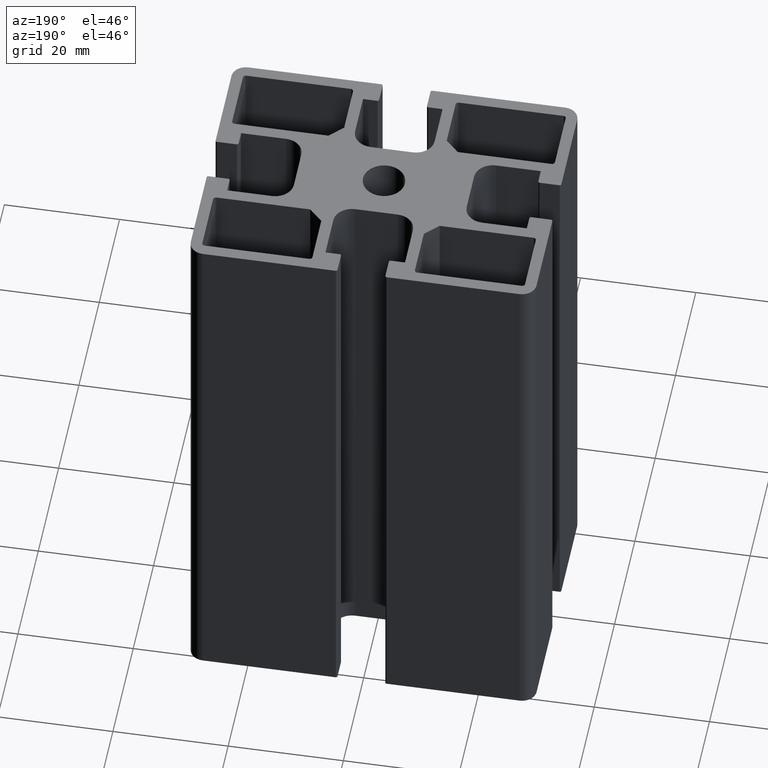
[diagram: clean part render]
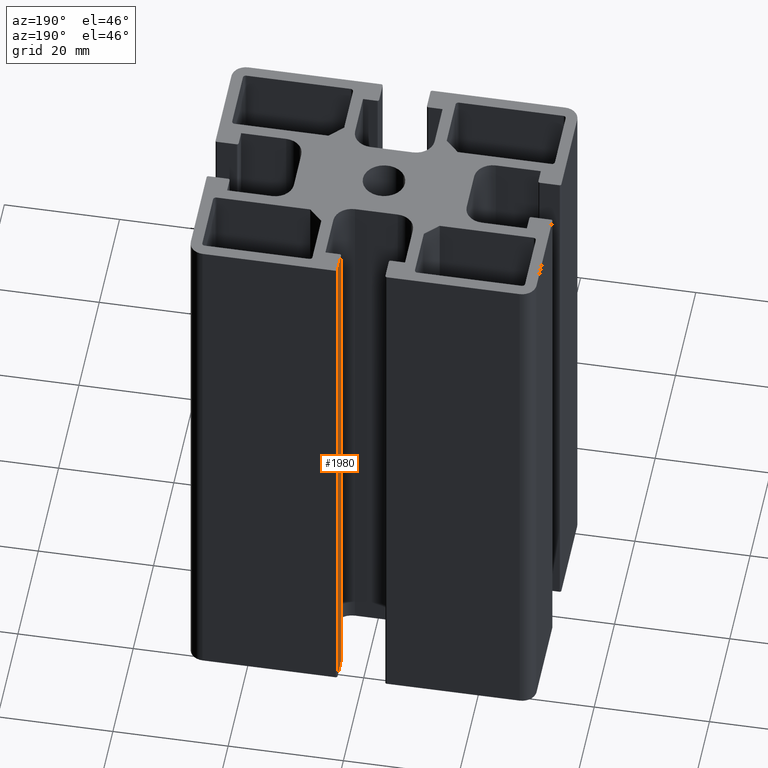
[diagram: same view with one face highlighted and labeled with its STEP entity id]
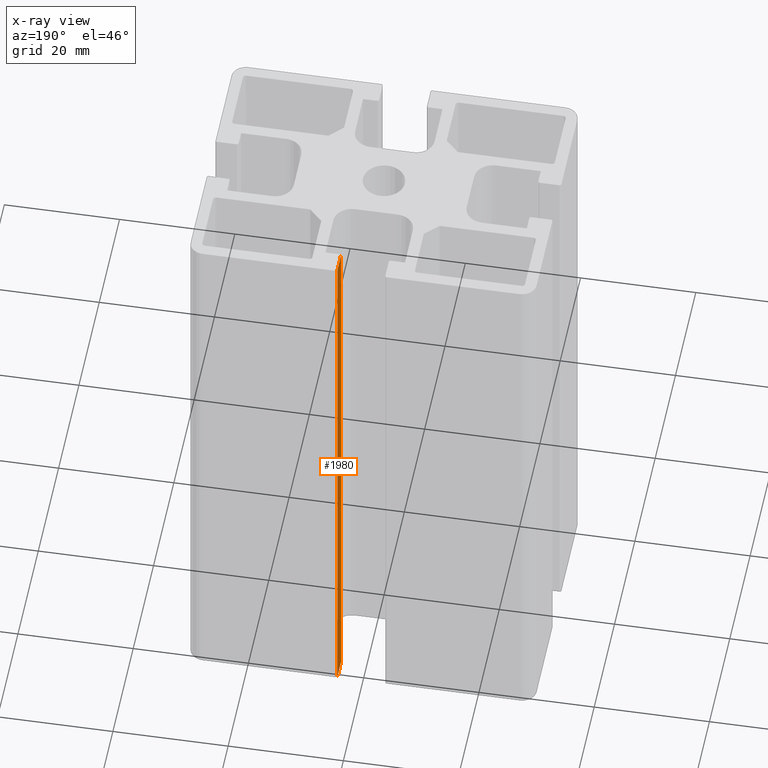
[diagram: x-ray of the same camera — body ghosted, the highlighted face saturated]
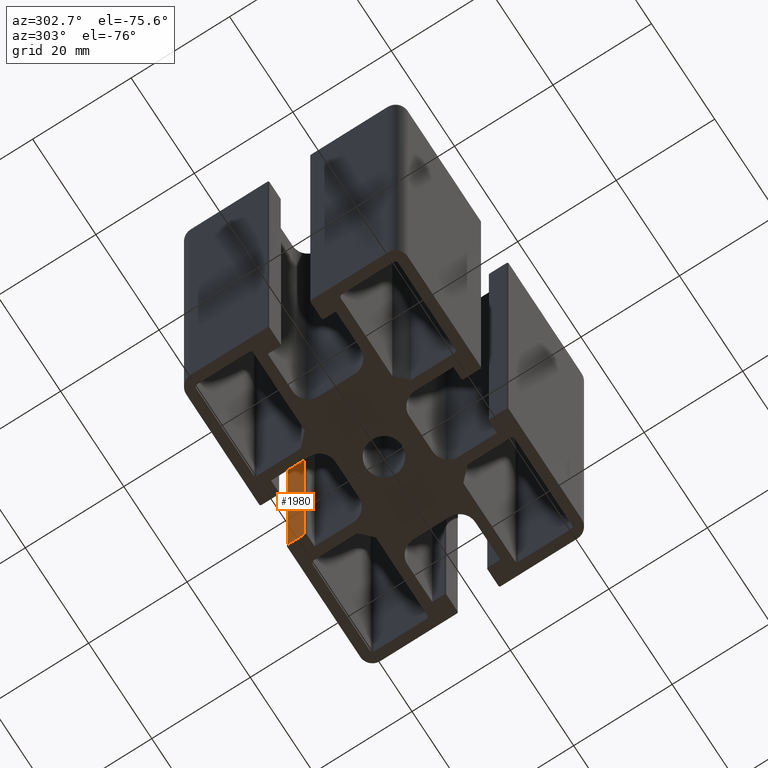
[diagram: same view with one face highlighted and labeled with its STEP entity id]
A machine part, auxiliary view. The second image highlights one B-rep face of the part: STEP entity #1980.
The next image is the same camera in x-ray: the body ghosted, the highlighted face saturated — about 0% of this face is hidden behind the body in this view.
A second angle (auxiliary view) of the same face is appended — the face is thin or edge-on in the first view.
In plain terms, the highlighted planar face has unit normal (-1, 0, 0).
Its self-contained STEP definition (entity closure, byte-faithful):
#233=FACE_OUTER_BOUND('',#338,.T.);
#338=EDGE_LOOP('',(#1685,#1686,#1687,#1688));
#459=LINE('',#3053,#667);
#544=LINE('',#3278,#752);
#545=LINE('',#3281,#753);
#546=LINE('',#3282,#754);
#667=VECTOR('',#2445,3.40000000000131);
#752=VECTOR('',#2686,100.);
#753=VECTOR('',#2689,3.40000000000131);
#754=VECTOR('',#2690,100.);
#891=VERTEX_POINT('',#3050);
#892=VERTEX_POINT('',#3052);
#954=VERTEX_POINT('',#3276);
#955=VERTEX_POINT('',#3280);
#1117=EDGE_CURVE('',#891,#892,#459,.T.);
#1230=EDGE_CURVE('',#954,#891,#544,.T.);
#1231=EDGE_CURVE('',#955,#954,#545,.T.);
#1232=EDGE_CURVE('',#955,#892,#546,.T.);
#1685=ORIENTED_EDGE('',*,*,#1230,.F.);
#1686=ORIENTED_EDGE('',*,*,#1231,.F.);
#1687=ORIENTED_EDGE('',*,*,#1232,.T.);
#1688=ORIENTED_EDGE('',*,*,#1117,.F.);
#1887=PLANE('',#2157);
#1980=ADVANCED_FACE('',(#233),#1887,.T.);
#2157=AXIS2_PLACEMENT_3D('',#3279,#2687,#2688);
#2445=DIRECTION('',(0.,1.,0.));
#2686=DIRECTION('',(0.,0.,-1.));
#2687=DIRECTION('center_axis',(-1.,0.,0.));
#2688=DIRECTION('ref_axis',(0.,-1.,0.));
#2689=DIRECTION('',(0.,-1.,0.));
#2690=DIRECTION('',(0.,0.,-1.));
#3050=CARTESIAN_POINT('',(4.15000000000077,18.7999999999994,-50.));
#3052=CARTESIAN_POINT('',(4.15000000000077,22.2000000000007,-50.));
#3053=CARTESIAN_POINT('',(4.15000000000077,18.7999999999994,-50.));
#3276=CARTESIAN_POINT('',(4.15000000000077,18.7999999999994,50.));
#3278=CARTESIAN_POINT('',(4.15000000000077,18.7999999999994,0.));
#3279=CARTESIAN_POINT('Origin',(4.15000000000077,22.2000000000007,0.));
#3280=CARTESIAN_POINT('',(4.15000000000077,22.2000000000007,50.));
#3281=CARTESIAN_POINT('',(4.15000000000077,18.7999999999994,50.));
#3282=CARTESIAN_POINT('',(4.15000000000077,22.2000000000007,0.));